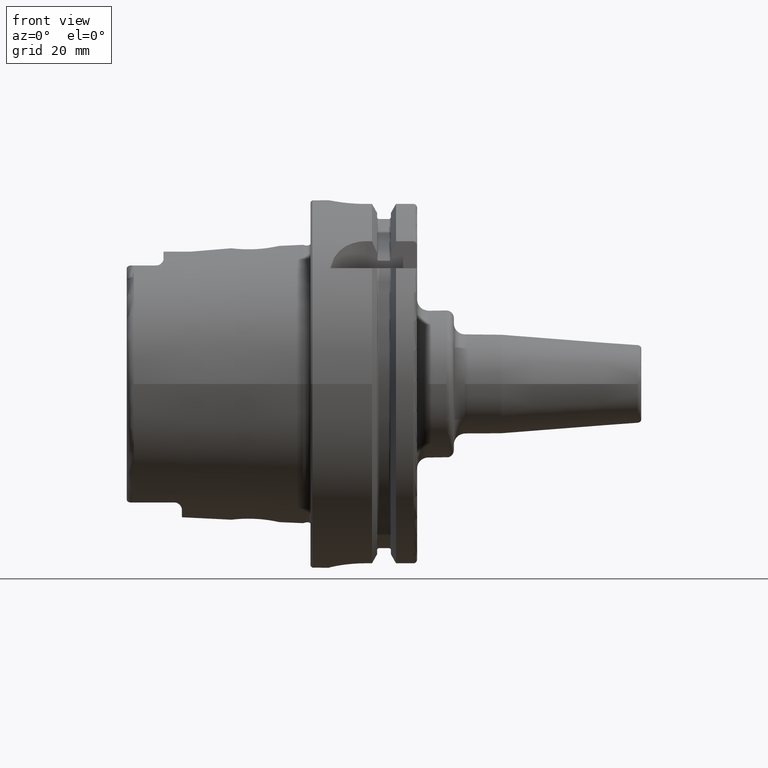
[diagram: clean part render]
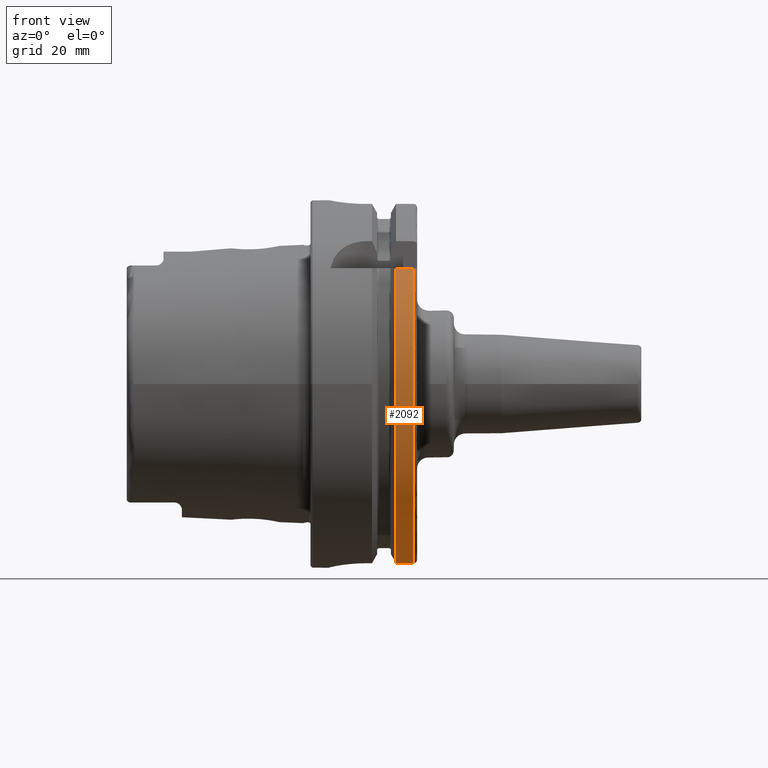
[diagram: same view with one face highlighted and labeled with its STEP entity id]
A machine part, front view. The second image highlights one B-rep face of the part: STEP entity #2092.
In plain terms, the highlighted cylindrical surface (partial cylindrical patch) has radius 50 mm, axis along (1, 0, 0).
Its self-contained STEP definition (entity closure, byte-faithful):
#197=CYLINDRICAL_SURFACE('',#2327,50.);
#278=FACE_OUTER_BOUND('',#411,.T.);
#411=EDGE_LOOP('',(#1734,#1735,#1736,#1737));
#529=LINE('',#4096,#637);
#547=LINE('',#4305,#655);
#637=VECTOR('',#2732,10.);
#655=VECTOR('',#2806,10.);
#768=CIRCLE('',#2324,50.);
#770=CIRCLE('',#2328,50.);
#954=VERTEX_POINT('',#4091);
#955=VERTEX_POINT('',#4095);
#987=VERTEX_POINT('',#4293);
#988=VERTEX_POINT('',#4304);
#1205=EDGE_CURVE('',#955,#954,#529,.T.);
#1253=EDGE_CURVE('',#988,#987,#547,.T.);
#1267=EDGE_CURVE('',#955,#987,#768,.T.);
#1270=EDGE_CURVE('',#954,#988,#770,.T.);
#1734=ORIENTED_EDGE('',*,*,#1205,.T.);
#1735=ORIENTED_EDGE('',*,*,#1270,.T.);
#1736=ORIENTED_EDGE('',*,*,#1253,.T.);
#1737=ORIENTED_EDGE('',*,*,#1267,.F.);
#2092=ADVANCED_FACE('',(#278),#197,.T.);
#2324=AXIS2_PLACEMENT_3D('',#4363,#2827,#2828);
#2327=AXIS2_PLACEMENT_3D('',#4368,#2834,#2835);
#2328=AXIS2_PLACEMENT_3D('',#4369,#2836,#2837);
#2732=DIRECTION('',(-1.,0.,0.));
#2806=DIRECTION('',(1.,0.,0.));
#2827=DIRECTION('center_axis',(1.,0.,0.));
#2828=DIRECTION('ref_axis',(0.,0.,-1.));
#2834=DIRECTION('center_axis',(1.,0.,0.));
#2835=DIRECTION('ref_axis',(0.,-0.94483222014474,-0.327554691275153));
#2836=DIRECTION('center_axis',(1.,0.,0.));
#2837=DIRECTION('ref_axis',(0.,0.,-1.));
#4091=CARTESIAN_POINT('',(23.2620290209214,-38.8297566307078,31.5));
#4095=CARTESIAN_POINT('',(28.,-38.8297566307078,31.5));
#4096=CARTESIAN_POINT('',(25.6310145104607,-38.8297566307078,31.5));
#4293=CARTESIAN_POINT('',(28.,-11.,-48.7749935930288));
#4304=CARTESIAN_POINT('',(23.2620290209214,-11.,-48.7749935930288));
#4305=CARTESIAN_POINT('',(25.6310145104607,-11.,-48.7749935930288));
#4363=CARTESIAN_POINT('Origin',(28.,0.,0.));
#4368=CARTESIAN_POINT('Origin',(25.6310145104607,0.,0.));
#4369=CARTESIAN_POINT('Origin',(23.2620290209214,0.,0.));